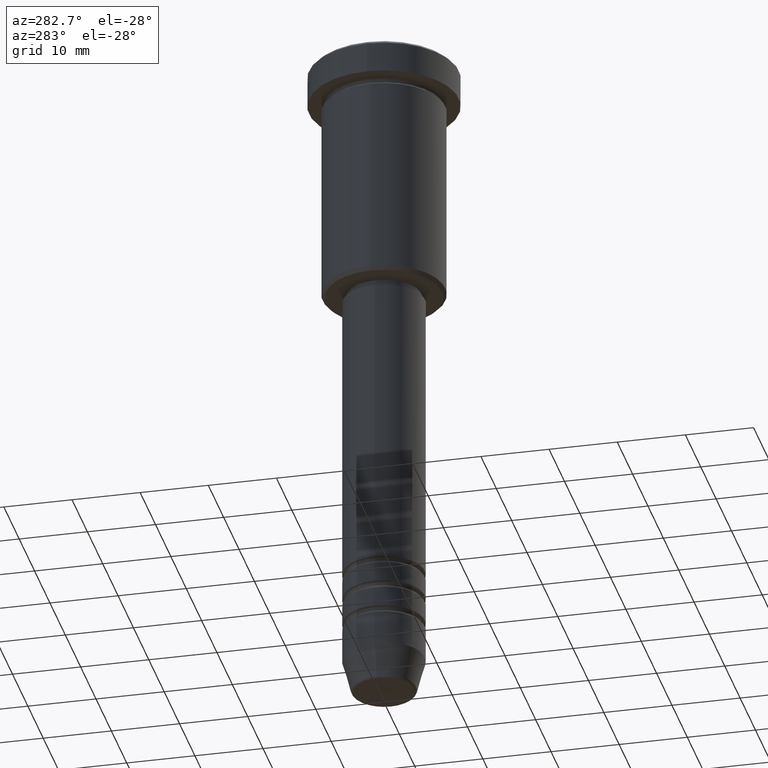
[diagram: clean part render]
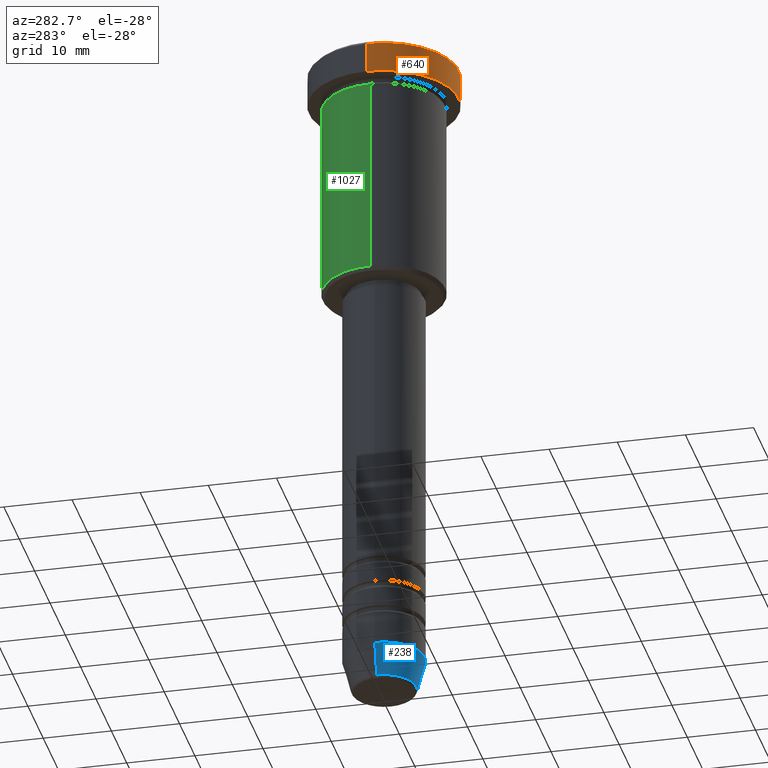
[diagram: same view with three faces highlighted in distinct colors, each labeled with its STEP entity id]
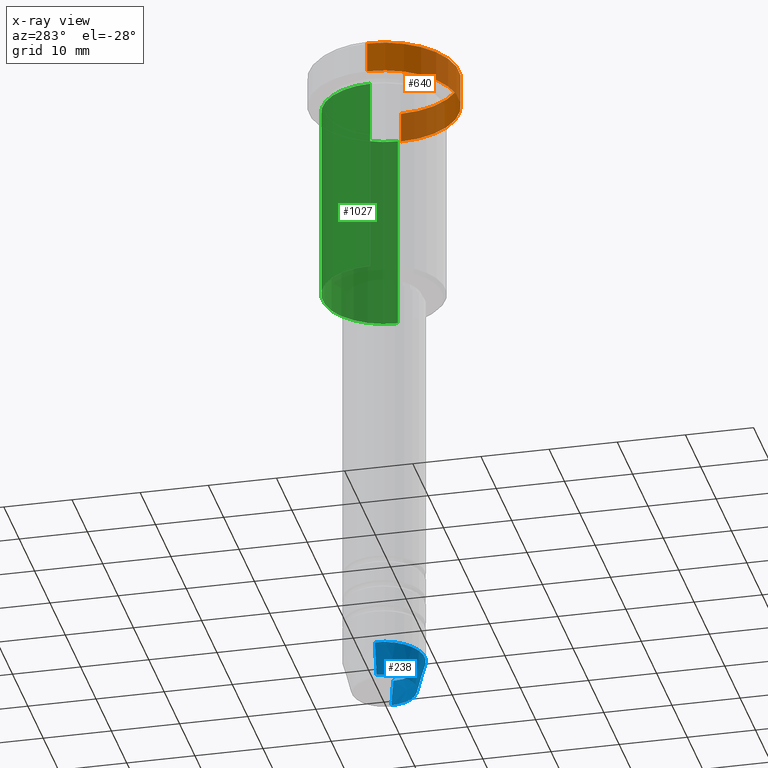
[diagram: x-ray of the same camera — body ghosted, the three highlighted faces saturated]
A machine part, auxiliary view with three faces highlighted in distinct colors.
The next image is the same camera in x-ray (body ghosted, the three faces saturated) — at least one of them is partly hidden behind the body in this view.
Their STEP definitions:

[orange] entity #640 — the highlighted cylindrical surface (partial cylindrical patch) has radius 11 mm, axis along (-0, -0, 1).
#15 = VECTOR ( 'NONE', #168, 1000.000000000000000 ) ;
#18 = EDGE_CURVE ( 'NONE', #277, #515, #798, .T. ) ;
#19 = ORIENTED_EDGE ( 'NONE', *, *, #18, .T. ) ;
#38 = AXIS2_PLACEMENT_3D ( 'NONE', #868, #426, #788 ) ;
#73 = CYLINDRICAL_SURFACE ( 'NONE', #536, 11.00000000000000178 ) ;
#87 = CARTESIAN_POINT ( 'NONE',  ( 0.000000000000000000, 0.000000000000000000, 0.000000000000000000 ) ) ;
#126 = ORIENTED_EDGE ( 'NONE', *, *, #580, .T. ) ;
#168 = DIRECTION ( 'NONE',  ( -0.000000000000000000, -0.000000000000000000, 1.000000000000000000 ) ) ;
#241 = AXIS2_PLACEMENT_3D ( 'NONE', #425, #399, #758 ) ;
#262 = EDGE_CURVE ( 'NONE', #466, #515, #705, .T. ) ;
#277 = VERTEX_POINT ( 'NONE', #523 ) ;
#321 = EDGE_LOOP ( 'NONE', ( #744, #126, #1150, #19 ) ) ;
#399 = DIRECTION ( 'NONE',  ( 0.000000000000000000, 0.000000000000000000, -1.000000000000000000 ) ) ;
#425 = CARTESIAN_POINT ( 'NONE',  ( 0.000000000000000000, 0.000000000000000000, -0.5000000000000022204 ) ) ;
#426 = DIRECTION ( 'NONE',  ( -0.000000000000000000, -0.000000000000000000, 1.000000000000000000 ) ) ;
#440 = LINE ( 'NONE', #896, #15 ) ;
#466 = VERTEX_POINT ( 'NONE', #870 ) ;
#515 = VERTEX_POINT ( 'NONE', #778 ) ;
#523 = CARTESIAN_POINT ( 'NONE',  ( 11.00000000000000178, 0.000000000000000000, -0.5000000000000022204 ) ) ;
#528 = FACE_OUTER_BOUND ( 'NONE', #321, .T. ) ;
#536 = AXIS2_PLACEMENT_3D ( 'NONE', #87, #906, #718 ) ;
#541 = CARTESIAN_POINT ( 'NONE',  ( 11.00000000000000000, 0.000000000000000000, -5.000000000000000000 ) ) ;
#580 = EDGE_CURVE ( 'NONE', #466, #622, #596, .T. ) ;
#596 = CIRCLE ( 'NONE', #38, 11.00000000000000000 ) ;
#622 = VERTEX_POINT ( 'NONE', #541 ) ;
#640 = ADVANCED_FACE ( 'NONE', ( #528 ), #73, .T. ) ;
#654 = EDGE_CURVE ( 'NONE', #622, #277, #440, .T. ) ;
#705 = LINE ( 'NONE', #801, #761 ) ;
#718 = DIRECTION ( 'NONE',  ( 1.000000000000000000, 0.000000000000000000, 0.000000000000000000 ) ) ;
#744 = ORIENTED_EDGE ( 'NONE', *, *, #262, .F. ) ;
#758 = DIRECTION ( 'NONE',  ( 1.000000000000000000, 0.000000000000000000, 0.000000000000000000 ) ) ;
#761 = VECTOR ( 'NONE', #1072, 1000.000000000000000 ) ;
#778 = CARTESIAN_POINT ( 'NONE',  ( -11.00000000000000178, 1.347111479062088602E-15, -0.5000000000000022204 ) ) ;
#788 = DIRECTION ( 'NONE',  ( 1.000000000000000000, 0.000000000000000000, 0.000000000000000000 ) ) ;
#798 = CIRCLE ( 'NONE', #241, 11.00000000000000178 ) ;
#801 = CARTESIAN_POINT ( 'NONE',  ( -11.00000000000000178, 1.347111479062088602E-15, 0.000000000000000000 ) ) ;
#868 = CARTESIAN_POINT ( 'NONE',  ( 0.000000000000000000, 0.000000000000000000, -5.000000000000000000 ) ) ;
#870 = CARTESIAN_POINT ( 'NONE',  ( -11.00000000000000000, 1.347111479062088602E-15, -5.000000000000000000 ) ) ;
#896 = CARTESIAN_POINT ( 'NONE',  ( 11.00000000000000178, 0.000000000000000000, 0.000000000000000000 ) ) ;
#906 = DIRECTION ( 'NONE',  ( -0.000000000000000000, -0.000000000000000000, 1.000000000000000000 ) ) ;
#1072 = DIRECTION ( 'NONE',  ( -0.000000000000000000, -0.000000000000000000, 1.000000000000000000 ) ) ;
#1150 = ORIENTED_EDGE ( 'NONE', *, *, #654, .T. ) ;

[blue] entity #238 — the highlighted conical surface has half-angle 15 deg.
#12 = AXIS2_PLACEMENT_3D ( 'NONE', #395, #1116, #749 ) ;
#43 = ORIENTED_EDGE ( 'NONE', *, *, #417, .F. ) ;
#49 = CARTESIAN_POINT ( 'NONE',  ( 4.759553456999436882, 0.000000000000000000, -99.62940952255127058 ) ) ;
#71 = AXIS2_PLACEMENT_3D ( 'NONE', #415, #516, #608 ) ;
#79 = DIRECTION ( 'NONE',  ( 0.2588190451025213501, 0.000000000000000000, 0.9659258262890680902 ) ) ;
#108 = ORIENTED_EDGE ( 'NONE', *, *, #797, .F. ) ;
#124 = LINE ( 'NONE', #409, #934 ) ;
#181 = VECTOR ( 'NONE', #79, 1000.000000000000000 ) ;
#191 = CARTESIAN_POINT ( 'NONE',  ( 6.000000000000000000, 0.000000000000000000, -95.00000000000000000 ) ) ;
#196 = VERTEX_POINT ( 'NONE', #698 ) ;
#201 = CONICAL_SURFACE ( 'NONE', #12, 6.000000000000000000, 0.2617993877991500740 ) ;
#238 = ADVANCED_FACE ( 'NONE', ( #754 ), #201, .T. ) ;
#259 = CIRCLE ( 'NONE', #71, 4.759553456999436882 ) ;
#385 = DIRECTION ( 'NONE',  ( -0.000000000000000000, -0.000000000000000000, 1.000000000000000000 ) ) ;
#395 = CARTESIAN_POINT ( 'NONE',  ( 0.000000000000000000, 0.000000000000000000, -95.00000000000000000 ) ) ;
#409 = CARTESIAN_POINT ( 'NONE',  ( -6.000000000000000000, 7.347880794884119736E-16, -95.00000000000000000 ) ) ;
#415 = CARTESIAN_POINT ( 'NONE',  ( 0.000000000000000000, 0.000000000000000000, -99.62940952255127058 ) ) ;
#417 = EDGE_CURVE ( 'NONE', #1064, #196, #124, .T. ) ;
#419 = VERTEX_POINT ( 'NONE', #49 ) ;
#439 = AXIS2_PLACEMENT_3D ( 'NONE', #837, #385, #655 ) ;
#516 = DIRECTION ( 'NONE',  ( -0.000000000000000000, -0.000000000000000000, 1.000000000000000000 ) ) ;
#604 = EDGE_CURVE ( 'NONE', #1064, #419, #259, .T. ) ;
#608 = DIRECTION ( 'NONE',  ( 1.000000000000000000, 0.000000000000000000, 0.000000000000000000 ) ) ;
#628 = CARTESIAN_POINT ( 'NONE',  ( 6.000000000000000000, 0.000000000000000000, -95.00000000000000000 ) ) ;
#639 = EDGE_CURVE ( 'NONE', #419, #848, #893, .T. ) ;
#655 = DIRECTION ( 'NONE',  ( 1.000000000000000000, 0.000000000000000000, 0.000000000000000000 ) ) ;
#698 = CARTESIAN_POINT ( 'NONE',  ( -6.000000000000000000, 7.347880794884119736E-16, -95.00000000000000000 ) ) ;
#726 = CIRCLE ( 'NONE', #439, 6.000000000000000000 ) ;
#749 = DIRECTION ( 'NONE',  ( 1.000000000000000000, 0.000000000000000000, 0.000000000000000000 ) ) ;
#754 = FACE_OUTER_BOUND ( 'NONE', #879, .T. ) ;
#756 = ORIENTED_EDGE ( 'NONE', *, *, #639, .T. ) ;
#770 = DIRECTION ( 'NONE',  ( -0.2588190451025213501, 3.169619151431772337E-17, 0.9659258262890680902 ) ) ;
#797 = EDGE_CURVE ( 'NONE', #196, #848, #726, .T. ) ;
#837 = CARTESIAN_POINT ( 'NONE',  ( 0.000000000000000000, 0.000000000000000000, -95.00000000000000000 ) ) ;
#848 = VERTEX_POINT ( 'NONE', #191 ) ;
#879 = EDGE_LOOP ( 'NONE', ( #43, #1099, #756, #108 ) ) ;
#893 = LINE ( 'NONE', #628, #181 ) ;
#934 = VECTOR ( 'NONE', #770, 1000.000000000000000 ) ;
#1064 = VERTEX_POINT ( 'NONE', #1169 ) ;
#1099 = ORIENTED_EDGE ( 'NONE', *, *, #604, .T. ) ;
#1116 = DIRECTION ( 'NONE',  ( -0.000000000000000000, -0.000000000000000000, 1.000000000000000000 ) ) ;
#1169 = CARTESIAN_POINT ( 'NONE',  ( -4.759553456999436882, 6.588326350684601277E-16, -99.62940952255127058 ) ) ;

[green] entity #1027 — the highlighted cylindrical surface (partial cylindrical patch) has radius 9 mm, axis along (-0, -0, 1).
#57 = AXIS2_PLACEMENT_3D ( 'NONE', #434, #890, #615 ) ;
#115 = ORIENTED_EDGE ( 'NONE', *, *, #273, .T. ) ;
#156 = CARTESIAN_POINT ( 'NONE',  ( 9.000000000000000000, 0.000000000000000000, 0.000000000000000000 ) ) ;
#160 = CARTESIAN_POINT ( 'NONE',  ( -9.000000000000000000, 1.102182119232617714E-15, -35.49999999999996447 ) ) ;
#228 = CARTESIAN_POINT ( 'NONE',  ( -9.000000000000000000, 1.102182119232617714E-15, 0.000000000000000000 ) ) ;
#229 = ORIENTED_EDGE ( 'NONE', *, *, #308, .F. ) ;
#235 = DIRECTION ( 'NONE',  ( -0.000000000000000000, -0.000000000000000000, 1.000000000000000000 ) ) ;
#249 = DIRECTION ( 'NONE',  ( 1.000000000000000000, 0.000000000000000000, 0.000000000000000000 ) ) ;
#252 = DIRECTION ( 'NONE',  ( 1.000000000000000000, 0.000000000000000000, 0.000000000000000000 ) ) ;
#256 = VERTEX_POINT ( 'NONE', #709 ) ;
#269 = CARTESIAN_POINT ( 'NONE',  ( 9.000000000000000000, 0.000000000000000000, -6.000000000000000000 ) ) ;
#273 = EDGE_CURVE ( 'NONE', #256, #734, #897, .T. ) ;
#308 = EDGE_CURVE ( 'NONE', #699, #984, #694, .T. ) ;
#318 = EDGE_CURVE ( 'NONE', #256, #699, #982, .T. ) ;
#352 = EDGE_CURVE ( 'NONE', #734, #984, #1063, .T. ) ;
#432 = CARTESIAN_POINT ( 'NONE',  ( 0.000000000000000000, 0.000000000000000000, -6.000000000000000000 ) ) ;
#434 = CARTESIAN_POINT ( 'NONE',  ( 0.000000000000000000, 0.000000000000000000, -35.49999999999996447 ) ) ;
#471 = VECTOR ( 'NONE', #525, 1000.000000000000000 ) ;
#525 = DIRECTION ( 'NONE',  ( -0.000000000000000000, -0.000000000000000000, 1.000000000000000000 ) ) ;
#526 = DIRECTION ( 'NONE',  ( -0.000000000000000000, -0.000000000000000000, 1.000000000000000000 ) ) ;
#565 = ORIENTED_EDGE ( 'NONE', *, *, #352, .T. ) ;
#573 = AXIS2_PLACEMENT_3D ( 'NONE', #432, #795, #249 ) ;
#598 = AXIS2_PLACEMENT_3D ( 'NONE', #638, #526, #252 ) ;
#615 = DIRECTION ( 'NONE',  ( -1.000000000000000000, 0.000000000000000000, 0.000000000000000000 ) ) ;
#638 = CARTESIAN_POINT ( 'NONE',  ( 0.000000000000000000, 0.000000000000000000, 0.000000000000000000 ) ) ;
#658 = CARTESIAN_POINT ( 'NONE',  ( -9.000000000000000000, 1.102182119232617714E-15, -6.000000000000000000 ) ) ;
#663 = ORIENTED_EDGE ( 'NONE', *, *, #318, .F. ) ;
#694 = CIRCLE ( 'NONE', #573, 9.000000000000000000 ) ;
#699 = VERTEX_POINT ( 'NONE', #269 ) ;
#709 = CARTESIAN_POINT ( 'NONE',  ( 9.000000000000000000, 0.000000000000000000, -35.49999999999996447 ) ) ;
#720 = CYLINDRICAL_SURFACE ( 'NONE', #598, 9.000000000000000000 ) ;
#734 = VERTEX_POINT ( 'NONE', #160 ) ;
#741 = VECTOR ( 'NONE', #235, 1000.000000000000000 ) ;
#795 = DIRECTION ( 'NONE',  ( -0.000000000000000000, -0.000000000000000000, 1.000000000000000000 ) ) ;
#809 = FACE_OUTER_BOUND ( 'NONE', #827, .T. ) ;
#827 = EDGE_LOOP ( 'NONE', ( #115, #565, #229, #663 ) ) ;
#890 = DIRECTION ( 'NONE',  ( -0.000000000000000000, -0.000000000000000000, 1.000000000000000000 ) ) ;
#897 = CIRCLE ( 'NONE', #57, 9.000000000000000000 ) ;
#982 = LINE ( 'NONE', #156, #471 ) ;
#984 = VERTEX_POINT ( 'NONE', #658 ) ;
#1027 = ADVANCED_FACE ( 'NONE', ( #809 ), #720, .T. ) ;
#1063 = LINE ( 'NONE', #228, #741 ) ;